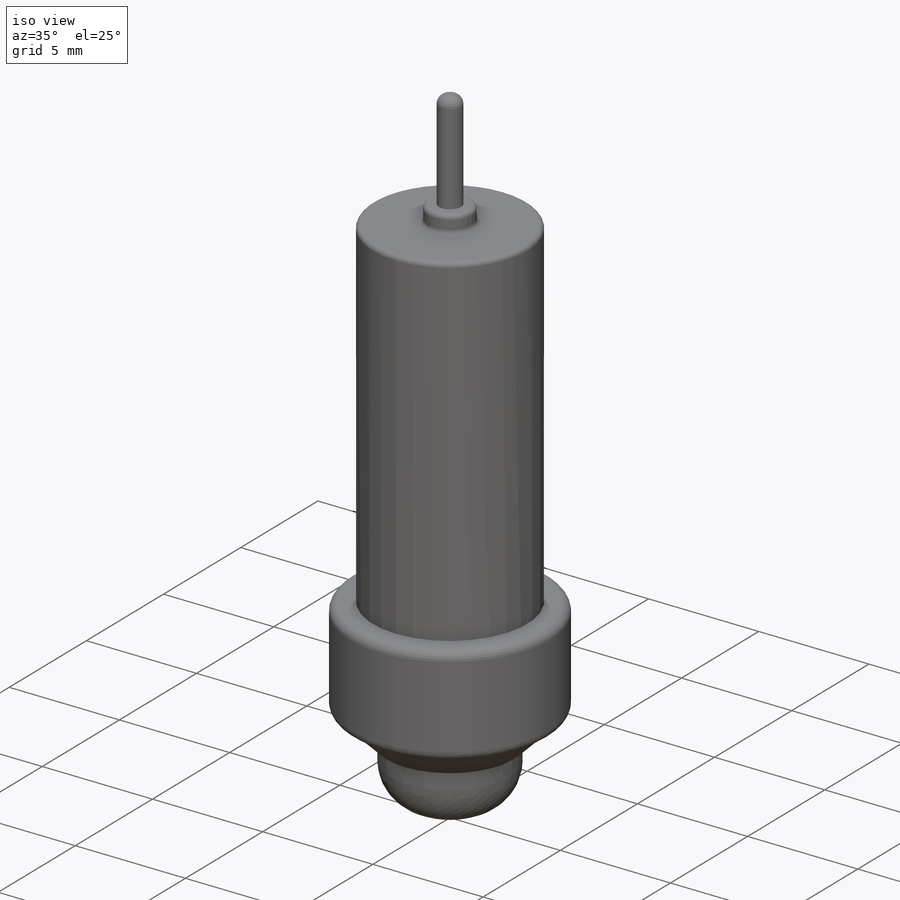
[diagram: iso view]
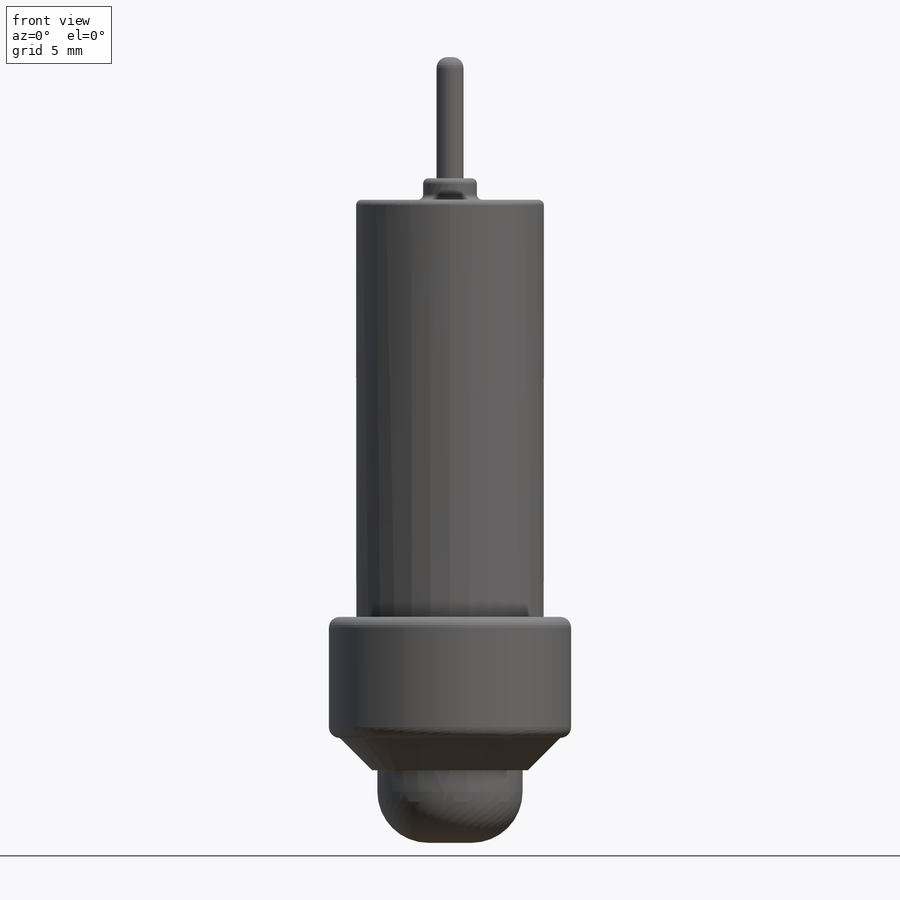
[diagram: front view]
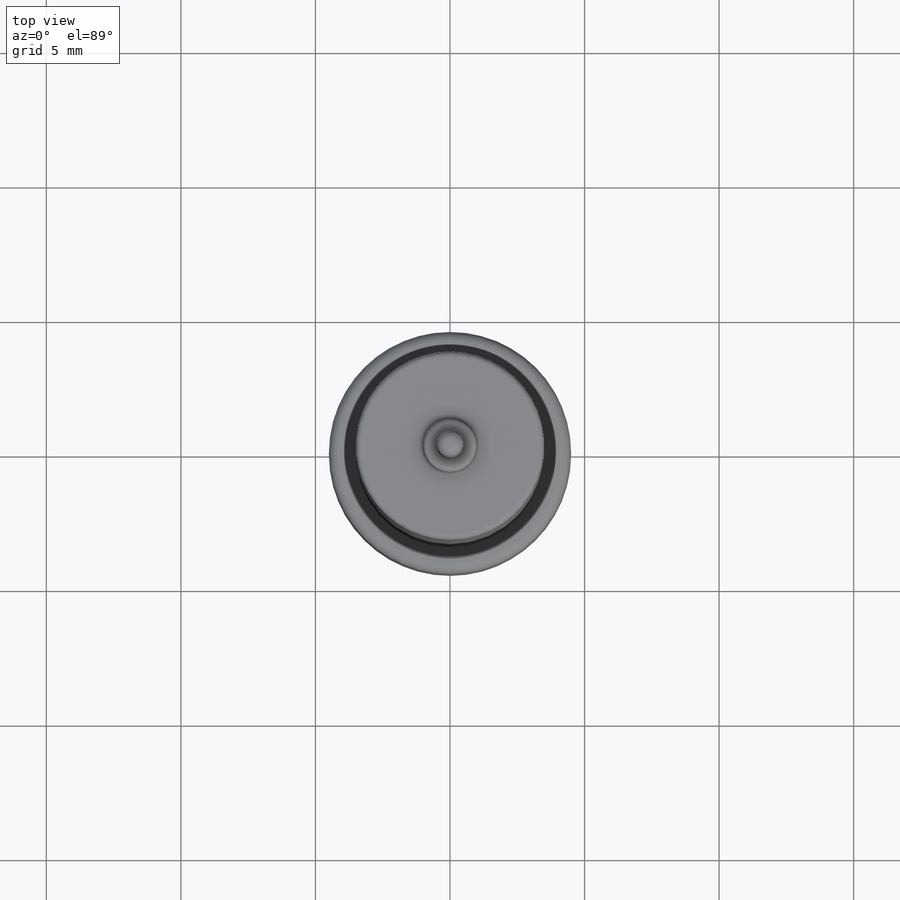
[diagram: top view]
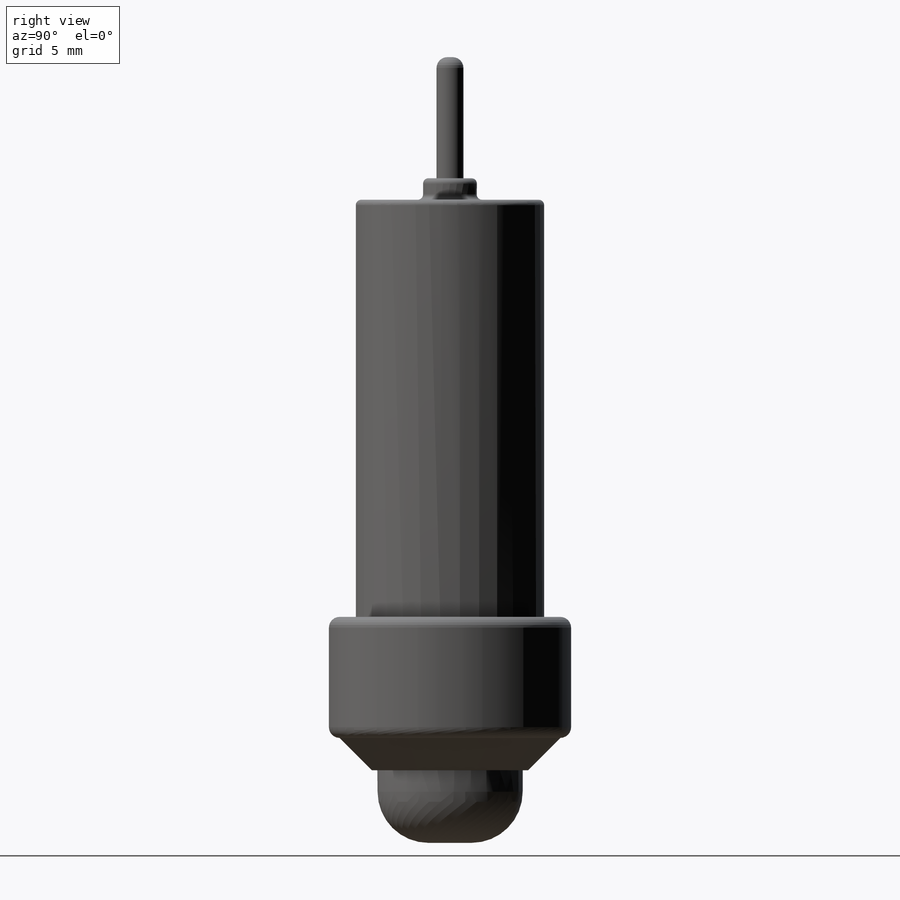
[diagram: right view]
SOLIDWORKS PART (.sldprt)
format: sldprt  version: not decoded by parser v0  size: 313,856 bytes
history: native  units: mm
features: fillet x7, sketch x6, extrude x6, plane x3, material x1, chamfer x1 (+9 scaffold rows collapsed)
feature tree (33):
  scaffold x9  (default folders/planes/origin — collapsed)
  material  "材质 <未指定>"
  plane  "前视基准面"
  plane  "上视基准面"
  plane  "右视基准面"
  sketch  "草图1"  dims[D1=~12.135323mm]
  extrude  "凸台-拉伸1"  Depth=20mm
  sketch  "草图2"  dims[D1=~0.864727mm]
  extrude  "凸台-拉伸2"  Depth=0.8mm
  fillet  "圆角1"  Radius=0.2mm
  fillet  "圆角2"  Radius=0.2mm
  sketch  "草图5"  dims[D1=~0.062273mm]
  extrude  "凸台-拉伸3"  Depth=4.5mm
  fillet  "圆角3"  Radius=0.4mm
  sketch  "草图6"  dims[D1=~4.136898mm]
  extrude  "凸台-拉伸4"  Depth=4.5mm
  fillet  "圆角5"  Radius=0.4mm
  fillet  "圆角6"  Radius=0.4mm
  sketch  "草图7"
  extrude  "凸台-拉伸7"  Depth=1.2mm
  chamfer  "倒角2"  Distance=1.2mm Angle=45deg
  sketch  "草图9"
  extrude  "凸台-拉伸8"  Depth=2.7mm
  fillet  "圆角11"  Radius=1.9mm
  fillet  "圆角13"  Radius=0.2mm
decode coverage: 18 of 20 modeling features carry decoded parameters
note: ~ marks probable driven/reference dimensions
note: suppression state not decoded; provenance and decode notes live in map.json
